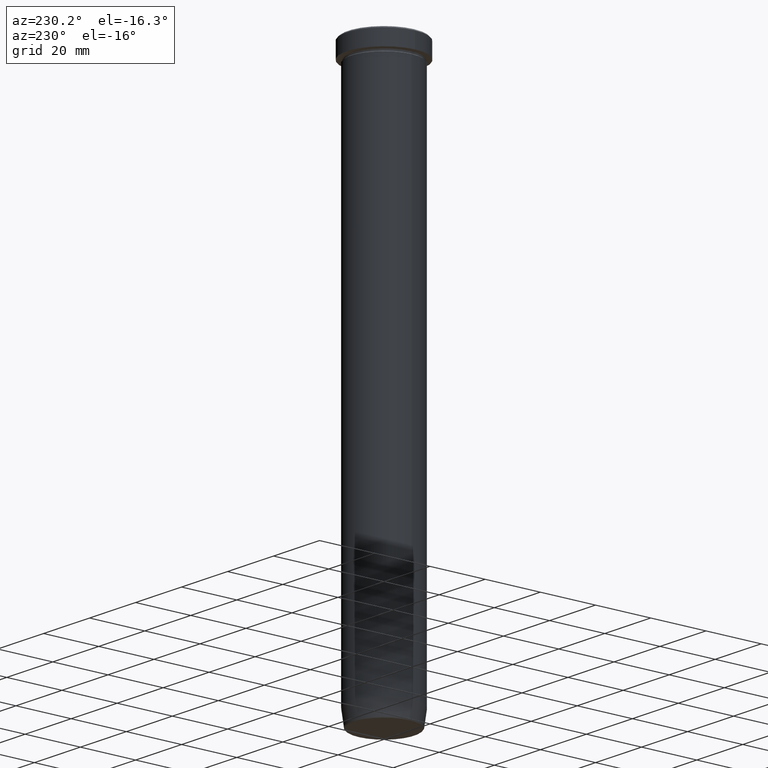
[diagram: clean part render]
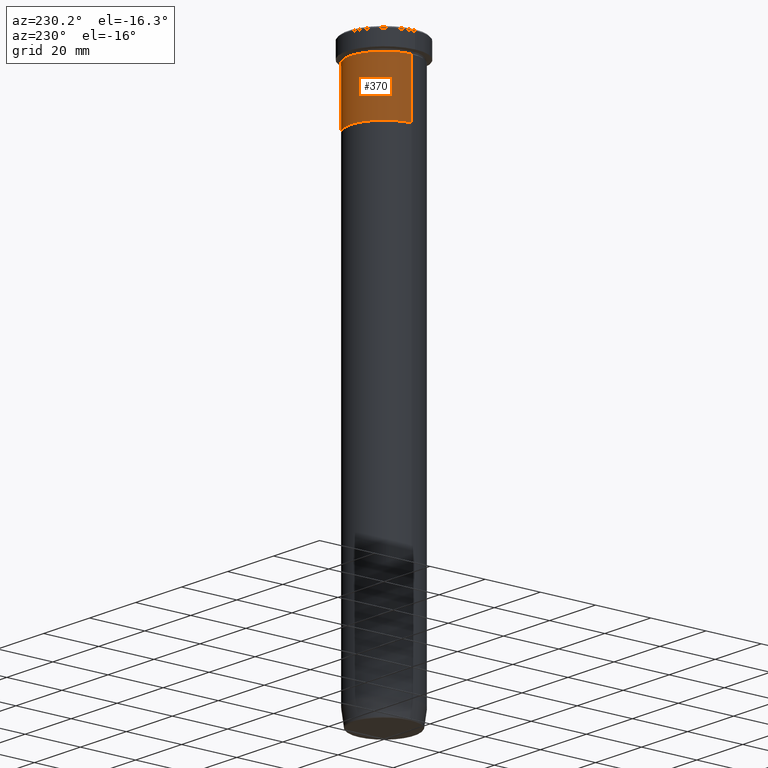
[diagram: same view with one face highlighted and labeled with its STEP entity id]
A machine part, auxiliary view. The second image highlights one B-rep face of the part: STEP entity #370.
In plain terms, the highlighted cylindrical surface (partial cylindrical patch) has radius 12 mm, axis along (-0, -0, 1).
Its self-contained STEP definition (entity closure, byte-faithful):
#3 = VERTEX_POINT ( 'NONE', #170 ) ;
#6 = CIRCLE ( 'NONE', #326, 12.00000000000000000 ) ;
#13 = DIRECTION ( 'NONE',  ( -0.000000000000000000, -0.000000000000000000, 1.000000000000000000 ) ) ;
#17 = VERTEX_POINT ( 'NONE', #126 ) ;
#33 = CARTESIAN_POINT ( 'NONE',  ( 12.00000000000000000, 0.000000000000000000, 0.000000000000000000 ) ) ;
#35 = EDGE_CURVE ( 'NONE', #3, #17, #216, .T. ) ;
#60 = EDGE_LOOP ( 'NONE', ( #158, #251, #283, #266 ) ) ;
#78 = DIRECTION ( 'NONE',  ( -0.000000000000000000, -0.000000000000000000, 1.000000000000000000 ) ) ;
#112 = EDGE_CURVE ( 'NONE', #262, #153, #199, .T. ) ;
#121 = VECTOR ( 'NONE', #78, 1000.000000000000000 ) ;
#126 = CARTESIAN_POINT ( 'NONE',  ( -12.00000000000000000, 1.469576158976823947E-15, -7.000000000000000000 ) ) ;
#146 = DIRECTION ( 'NONE',  ( -0.000000000000000000, -0.000000000000000000, 1.000000000000000000 ) ) ;
#149 = CARTESIAN_POINT ( 'NONE',  ( 0.000000000000000000, 0.000000000000000000, 0.000000000000000000 ) ) ;
#153 = VERTEX_POINT ( 'NONE', #450 ) ;
#158 = ORIENTED_EDGE ( 'NONE', *, *, #194, .T. ) ;
#170 = CARTESIAN_POINT ( 'NONE',  ( -12.00000000000000000, 1.469576158976823947E-15, -27.00000000000000000 ) ) ;
#171 = DIRECTION ( 'NONE',  ( 1.000000000000000000, 0.000000000000000000, 0.000000000000000000 ) ) ;
#194 = EDGE_CURVE ( 'NONE', #262, #3, #6, .T. ) ;
#196 = DIRECTION ( 'NONE',  ( 1.000000000000000000, 0.000000000000000000, 0.000000000000000000 ) ) ;
#199 = LINE ( 'NONE', #33, #121 ) ;
#202 = AXIS2_PLACEMENT_3D ( 'NONE', #219, #401, #171 ) ;
#216 = LINE ( 'NONE', #403, #542 ) ;
#219 = CARTESIAN_POINT ( 'NONE',  ( 0.000000000000000000, 0.000000000000000000, -7.000000000000000000 ) ) ;
#251 = ORIENTED_EDGE ( 'NONE', *, *, #35, .T. ) ;
#262 = VERTEX_POINT ( 'NONE', #368 ) ;
#266 = ORIENTED_EDGE ( 'NONE', *, *, #112, .F. ) ;
#278 = CARTESIAN_POINT ( 'NONE',  ( 0.000000000000000000, 0.000000000000000000, -27.00000000000000000 ) ) ;
#283 = ORIENTED_EDGE ( 'NONE', *, *, #537, .F. ) ;
#289 = FACE_OUTER_BOUND ( 'NONE', #60, .T. ) ;
#305 = CIRCLE ( 'NONE', #202, 12.00000000000000000 ) ;
#326 = AXIS2_PLACEMENT_3D ( 'NONE', #278, #146, #196 ) ;
#368 = CARTESIAN_POINT ( 'NONE',  ( 12.00000000000000000, 0.000000000000000000, -27.00000000000000000 ) ) ;
#370 = ADVANCED_FACE ( 'NONE', ( #289 ), #462, .T. ) ;
#378 = DIRECTION ( 'NONE',  ( 1.000000000000000000, 0.000000000000000000, 0.000000000000000000 ) ) ;
#401 = DIRECTION ( 'NONE',  ( -0.000000000000000000, -0.000000000000000000, 1.000000000000000000 ) ) ;
#403 = CARTESIAN_POINT ( 'NONE',  ( -12.00000000000000000, 1.469576158976823947E-15, 0.000000000000000000 ) ) ;
#450 = CARTESIAN_POINT ( 'NONE',  ( 12.00000000000000000, 0.000000000000000000, -7.000000000000000000 ) ) ;
#462 = CYLINDRICAL_SURFACE ( 'NONE', #525, 12.00000000000000000 ) ;
#525 = AXIS2_PLACEMENT_3D ( 'NONE', #149, #13, #378 ) ;
#536 = DIRECTION ( 'NONE',  ( -0.000000000000000000, -0.000000000000000000, 1.000000000000000000 ) ) ;
#537 = EDGE_CURVE ( 'NONE', #153, #17, #305, .T. ) ;
#542 = VECTOR ( 'NONE', #536, 1000.000000000000000 ) ;